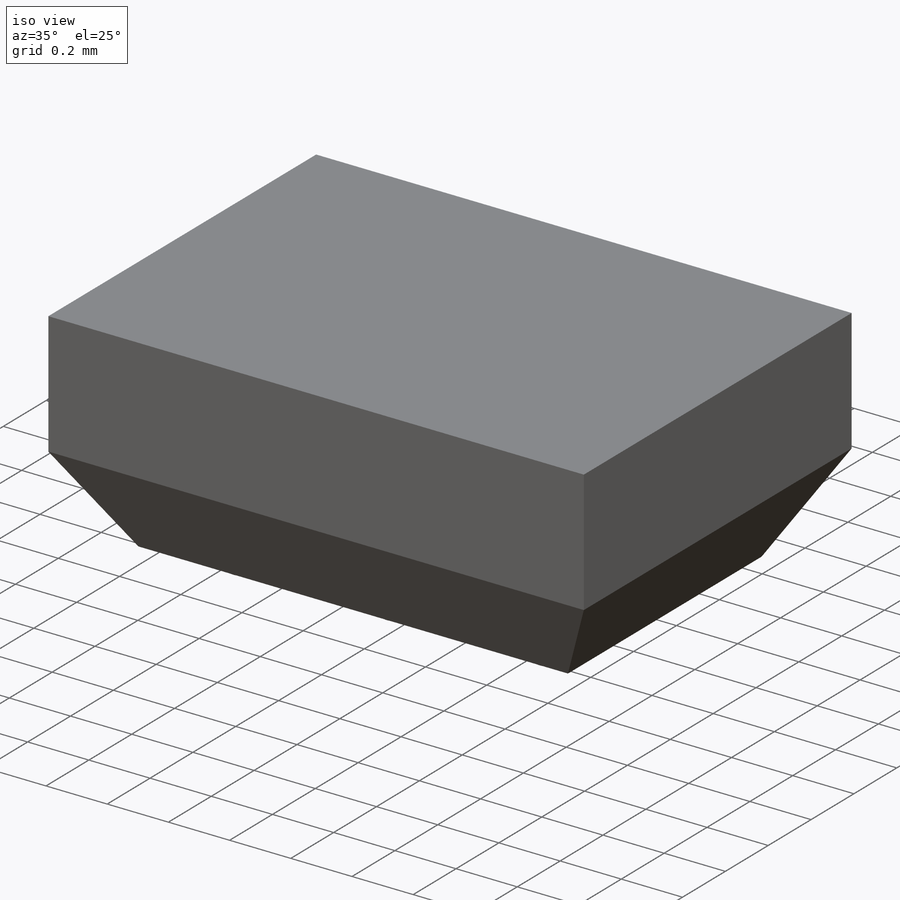
[diagram: iso view]
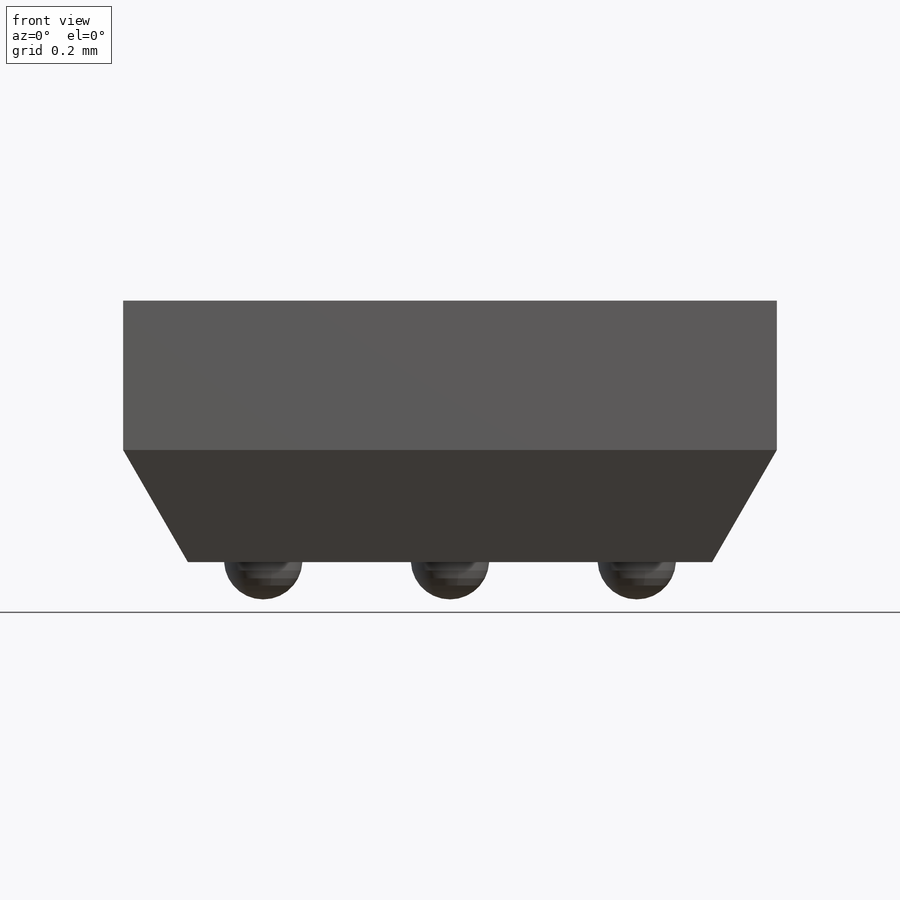
[diagram: front view]
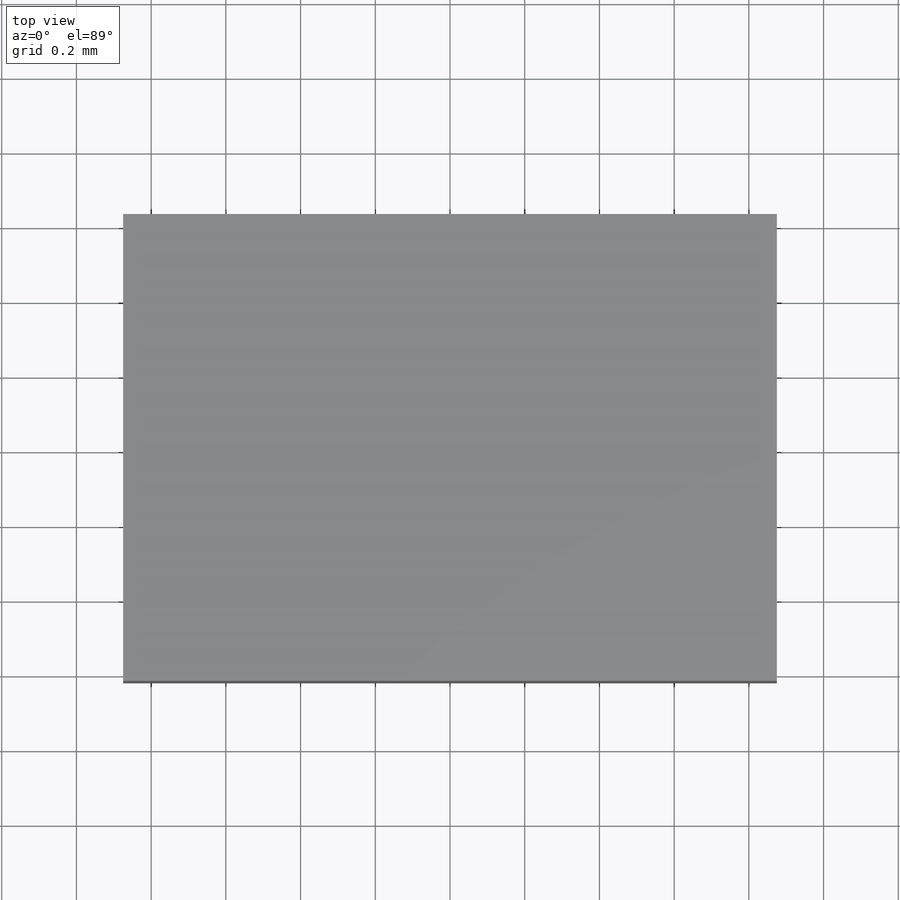
[diagram: top view]
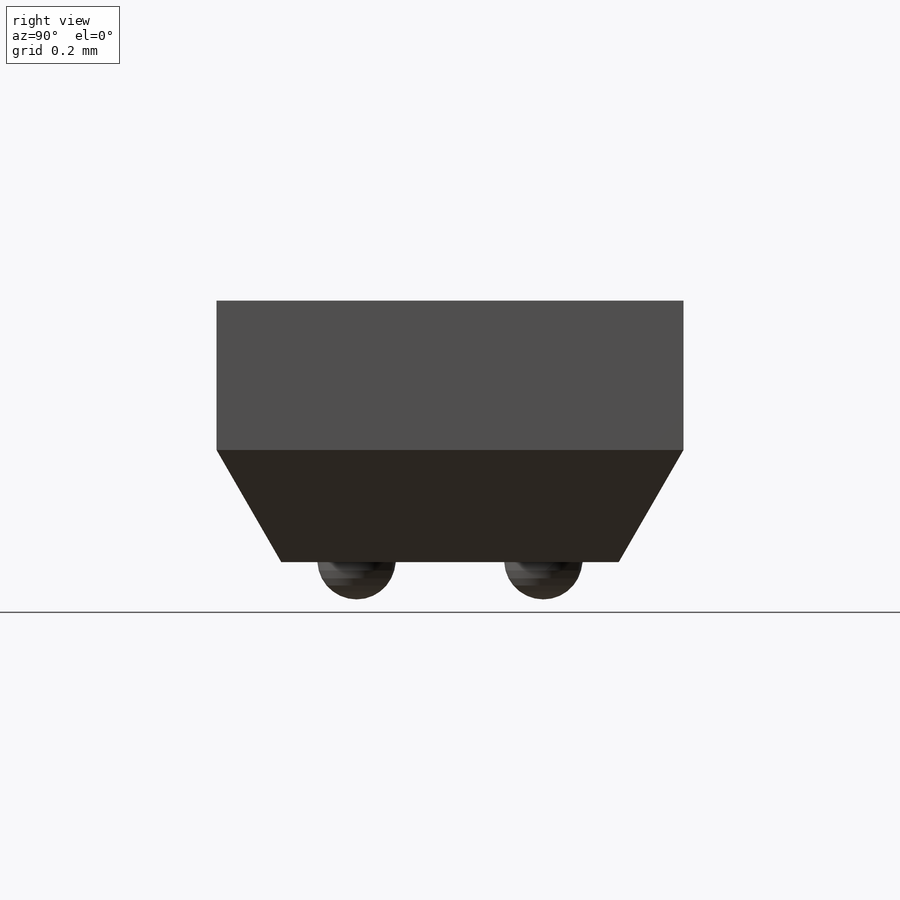
[diagram: right view]
SOLIDWORKS PART (.sldprt)
format: sldprt  version: not decoded by parser v0  size: 171,520 bytes
history: native  units: mm
features: sketch x2, extrude x2, material x1, fillet x1 (+13 scaffold rows collapsed)
feature tree (19):
  scaffold x13  (default folders/planes/origin — collapsed)
  material  "Material <not specified>"
  sketch  "Sketch1"  dims[D1=1.75mm D2=1.25mm]
  extrude  "Boss-Extrude1"  Depth=0.4mm
  sketch  "Sketch2"  dims[c1.D5=0.21mm c1.D1=0.375mm c1.D2=0.375mm c1.D3=~1.40359mm c2.D1=0.375mm c2.D2=0.375mm c2.D3=0.5mm c2.D4=0.5mm]
  extrude  "Boss-Extrude2"  Depth=0.1mm
  fillet  "Fillet2"  Radius=0.105mm
decode coverage: 5 of 5 modeling features carry decoded parameters
note: ~ marks probable driven/reference dimensions
note: suppression state not decoded; provenance and decode notes live in map.json
